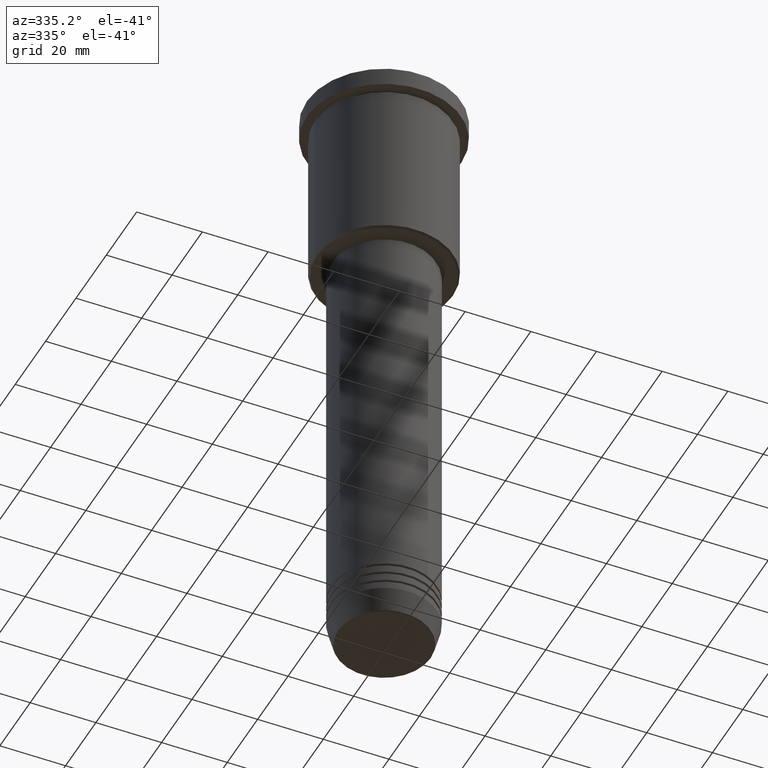
[diagram: clean part render]
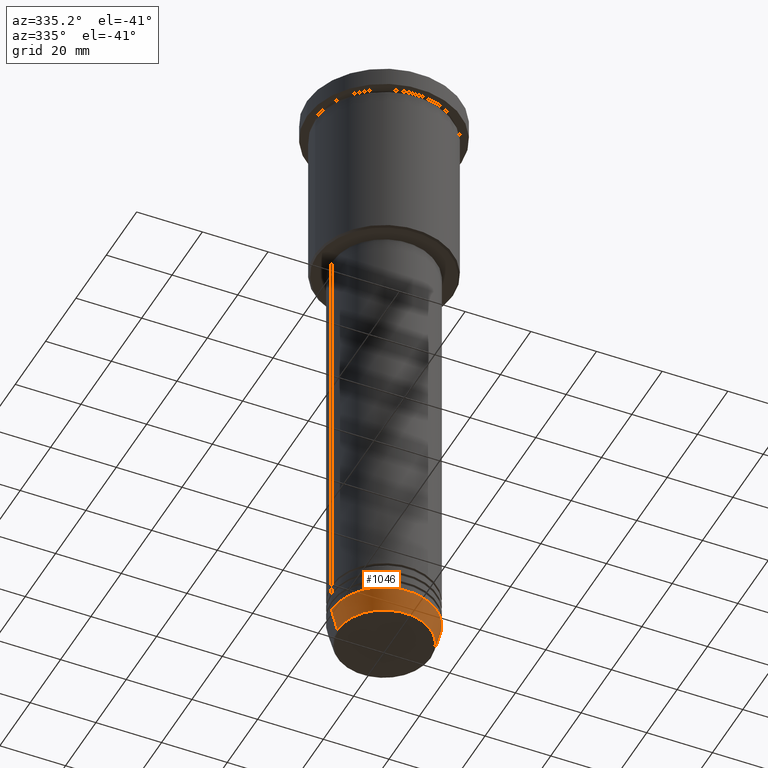
[diagram: same view with one face highlighted and labeled with its STEP entity id]
A machine part, auxiliary view. The second image highlights one B-rep face of the part: STEP entity #1046.
In plain terms, the highlighted conical surface has half-angle 15 deg.
Its self-contained STEP definition (entity closure, byte-faithful):
#59 = DIRECTION ( 'NONE',  ( 1.000000000000000000, 0.000000000000000000, 0.000000000000000000 ) ) ;
#71 = DIRECTION ( 'NONE',  ( -0.000000000000000000, -0.000000000000000000, 1.000000000000000000 ) ) ;
#127 = AXIS2_PLACEMENT_3D ( 'NONE', #369, #643, #744 ) ;
#128 = CIRCLE ( 'NONE', #127, 14.22365507213719660 ) ;
#152 = CARTESIAN_POINT ( 'NONE',  ( 0.000000000000000000, 0.000000000000000000, -184.0000000000000284 ) ) ;
#216 = FACE_OUTER_BOUND ( 'NONE', #916, .T. ) ;
#288 = EDGE_CURVE ( 'NONE', #994, #1015, #630, .T. ) ;
#353 = VECTOR ( 'NONE', #367, 1000.000000000000000 ) ;
#367 = DIRECTION ( 'NONE',  ( 0.2588190451025213501, 0.000000000000000000, 0.9659258262890680902 ) ) ;
#369 = CARTESIAN_POINT ( 'NONE',  ( 0.000000000000000000, 0.000000000000000000, -190.6294095225512706 ) ) ;
#377 = EDGE_CURVE ( 'NONE', #739, #821, #128, .T. ) ;
#426 = LINE ( 'NONE', #543, #706 ) ;
#478 = ORIENTED_EDGE ( 'NONE', *, *, #377, .T. ) ;
#517 = DIRECTION ( 'NONE',  ( 1.000000000000000000, 0.000000000000000000, 0.000000000000000000 ) ) ;
#543 = CARTESIAN_POINT ( 'NONE',  ( -16.00000000000000000, 1.959434878635765131E-15, -184.0000000000000284 ) ) ;
#565 = CARTESIAN_POINT ( 'NONE',  ( -16.00000000000000000, 1.959434878635765131E-15, -184.0000000000000284 ) ) ;
#574 = LINE ( 'NONE', #938, #353 ) ;
#599 = ORIENTED_EDGE ( 'NONE', *, *, #951, .T. ) ;
#630 = CIRCLE ( 'NONE', #1162, 16.00000000000000000 ) ;
#643 = DIRECTION ( 'NONE',  ( -0.000000000000000000, -0.000000000000000000, 1.000000000000000000 ) ) ;
#706 = VECTOR ( 'NONE', #899, 1000.000000000000000 ) ;
#732 = CARTESIAN_POINT ( 'NONE',  ( 14.22365507213719660, 0.000000000000000000, -190.6294095225512706 ) ) ;
#739 = VERTEX_POINT ( 'NONE', #923 ) ;
#744 = DIRECTION ( 'NONE',  ( 1.000000000000000000, 0.000000000000000000, 0.000000000000000000 ) ) ;
#755 = ORIENTED_EDGE ( 'NONE', *, *, #760, .F. ) ;
#760 = EDGE_CURVE ( 'NONE', #739, #994, #426, .T. ) ;
#821 = VERTEX_POINT ( 'NONE', #732 ) ;
#899 = DIRECTION ( 'NONE',  ( -0.2588190451025213501, 3.169619151431772337E-17, 0.9659258262890680902 ) ) ;
#916 = EDGE_LOOP ( 'NONE', ( #755, #478, #599, #979 ) ) ;
#923 = CARTESIAN_POINT ( 'NONE',  ( -14.22365507213719660, 1.850665122131324126E-15, -190.6294095225512706 ) ) ;
#937 = AXIS2_PLACEMENT_3D ( 'NONE', #1150, #1140, #59 ) ;
#938 = CARTESIAN_POINT ( 'NONE',  ( 16.00000000000000000, 0.000000000000000000, -184.0000000000000284 ) ) ;
#951 = EDGE_CURVE ( 'NONE', #821, #1015, #574, .T. ) ;
#979 = ORIENTED_EDGE ( 'NONE', *, *, #288, .F. ) ;
#994 = VERTEX_POINT ( 'NONE', #565 ) ;
#1015 = VERTEX_POINT ( 'NONE', #1033 ) ;
#1033 = CARTESIAN_POINT ( 'NONE',  ( 16.00000000000000000, 0.000000000000000000, -184.0000000000000284 ) ) ;
#1046 = ADVANCED_FACE ( 'NONE', ( #216 ), #1169, .T. ) ;
#1140 = DIRECTION ( 'NONE',  ( -0.000000000000000000, -0.000000000000000000, 1.000000000000000000 ) ) ;
#1150 = CARTESIAN_POINT ( 'NONE',  ( 0.000000000000000000, 0.000000000000000000, -184.0000000000000284 ) ) ;
#1162 = AXIS2_PLACEMENT_3D ( 'NONE', #152, #71, #517 ) ;
#1169 = CONICAL_SURFACE ( 'NONE', #937, 16.00000000000000000, 0.2617993877991500740 ) ;